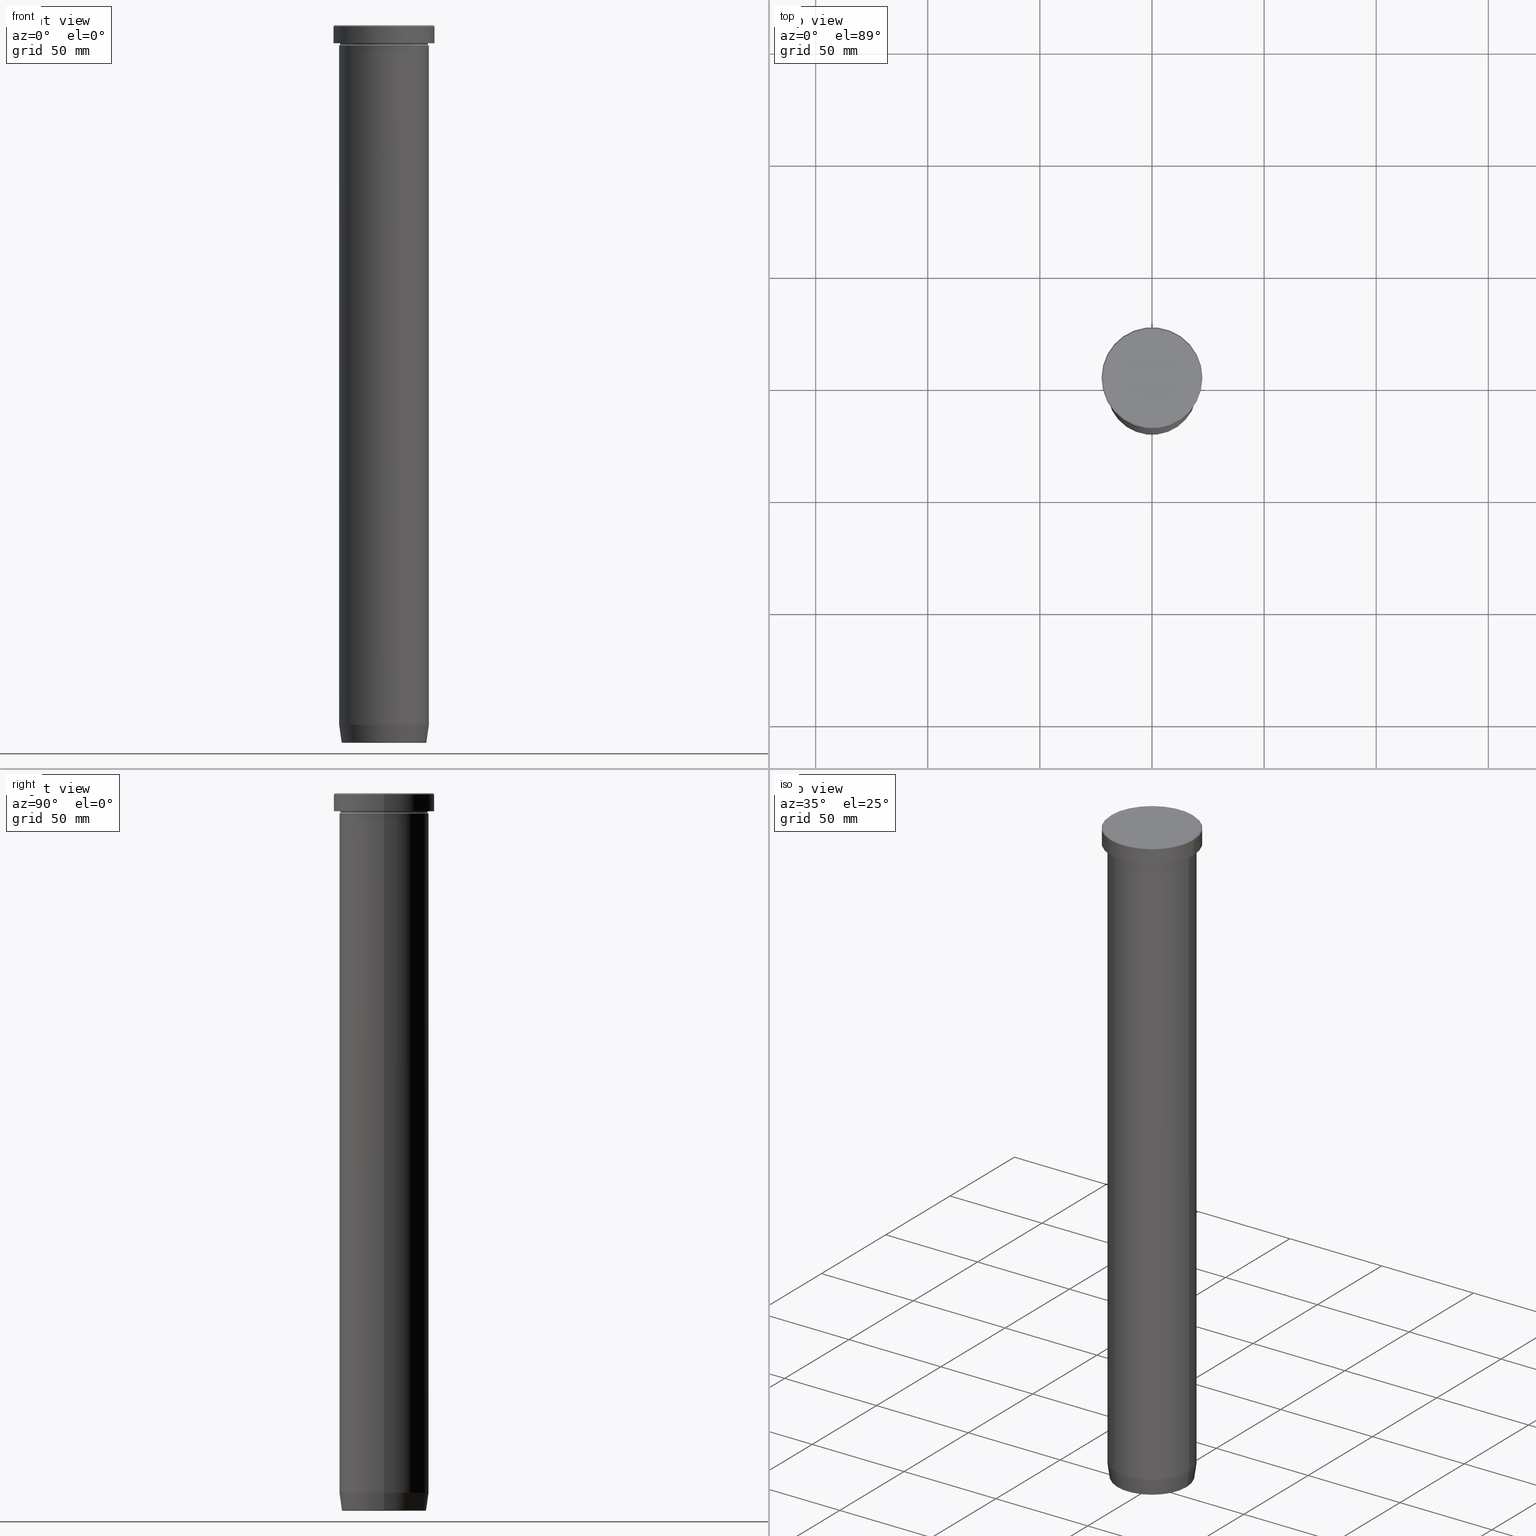
[diagram: canonical four-view strip — front | top / right | iso, engineering-drawing reading convention]
A machine part, canonical four-view strip (front | top / right | iso — engineering-drawing reading convention). The complete STEP part file that produces these views, byte-faithful:
ISO-10303-21;
HEADER;
FILE_DESCRIPTION (( 'STEP AP203' ),
    '1' );
FILE_NAME ('9554.STEP',
    '2024-01-02T17:47:36',
    ( '' ),
    ( '' ),
    'SwSTEP 2.0',
    'SolidWorks 2019',
    '' );
FILE_SCHEMA (( 'CONFIG_CONTROL_DESIGN' ));
ENDSEC;

DATA;
#1 = CARTESIAN_POINT ( 'NONE',  ( 0.000000000000000000, 0.000000000000000000, 0.000000000000000000 ) ) ;
#2 = ADVANCED_FACE ( 'NONE', ( #270 ), #80, .F. ) ;
#3 = AXIS2_PLACEMENT_3D ( 'NONE', #422, #389, #468 ) ;
#4 = ADVANCED_FACE ( 'NONE', ( #85 ), #300, .T. ) ;
#5 = DIRECTION ( 'NONE',  ( 1.000000000000000000, 0.000000000000000000, 0.000000000000000000 ) ) ;
#6 = CC_DESIGN_APPROVAL ( #25, ( #485 ) ) ;
#7 = DIRECTION ( 'NONE',  ( -0.000000000000000000, -0.000000000000000000, 1.000000000000000000 ) ) ;
#8 = EDGE_LOOP ( 'NONE', ( #364, #197, #355, #37 ) ) ;
#9 = VERTEX_POINT ( 'NONE', #318 ) ;
#10 = DIRECTION ( 'NONE',  ( -0.000000000000000000, -0.000000000000000000, 1.000000000000000000 ) ) ;
#11 = ORIENTED_EDGE ( 'NONE', *, *, #146, .F. ) ;
#12 = DATE_AND_TIME ( #472, #213 ) ;
#13 = DIRECTION ( 'NONE',  ( 0.000000000000000000, 0.000000000000000000, -1.000000000000000000 ) ) ;
#14 = ORIENTED_EDGE ( 'NONE', *, *, #452, .T. ) ;
#15 = ORIENTED_EDGE ( 'NONE', *, *, #385, .F. ) ;
#16 = EDGE_CURVE ( 'NONE', #121, #127, #240, .T. ) ;
#17 = VERTEX_POINT ( 'NONE', #399 ) ;
#18 = AXIS2_PLACEMENT_3D ( 'NONE', #378, #198, #566 ) ;
#19 = VERTEX_POINT ( 'NONE', #491 ) ;
#20 = AXIS2_PLACEMENT_3D ( 'NONE', #185, #586, #324 ) ;
#21 = PERSON_AND_ORGANIZATION_ROLE ( 'design_owner' ) ;
#22 = EDGE_CURVE ( 'NONE', #358, #263, #51, .T. ) ;
#23 = DIRECTION ( 'NONE',  ( 1.000000000000000000, 0.000000000000000000, 0.000000000000000000 ) ) ;
#24 = FACE_OUTER_BOUND ( 'NONE', #57, .T. ) ;
#25 = APPROVAL ( #544, 'NEUR�EN�' ) ;
#26 = UNCERTAINTY_MEASURE_WITH_UNIT (LENGTH_MEASURE( 1.000000000000000082E-05 ), #441, 'distance_accuracy_value', 'NONE');
#27 = EDGE_CURVE ( 'NONE', #467, #423, #350, .T. ) ;
#28 = DIRECTION ( 'NONE',  ( 1.000000000000000000, 0.000000000000000000, 0.000000000000000000 ) ) ;
#29 = ADVANCED_FACE ( 'NONE', ( #541, #24 ), #314, .T. ) ;
#30 = CARTESIAN_POINT ( 'NONE',  ( -20.00000000000000000, 2.449293598294706513E-15, -8.499999999999996447 ) ) ;
#31 = AXIS2_PLACEMENT_3D ( 'NONE', #444, #69, #595 ) ;
#32 = CARTESIAN_POINT ( 'NONE',  ( 19.50000000000000000, 0.000000000000000000, -8.499999999999996447 ) ) ;
#33 = TOROIDAL_SURFACE ( 'NONE', #247, 20.00000000000000000, 0.5000000000000000000 ) ;
#34 = ORIENTED_EDGE ( 'NONE', *, *, #308, .F. ) ;
#35 = CARTESIAN_POINT ( 'NONE',  ( 0.000000000000000000, 0.000000000000000000, -40.00000000000000000 ) ) ;
#36 = DATE_TIME_ROLE ( 'creation_date' ) ;
#37 = ORIENTED_EDGE ( 'NONE', *, *, #181, .F. ) ;
#38 = EDGE_CURVE ( 'NONE', #428, #19, #469, .T. ) ;
#39 = DIRECTION ( 'NONE',  ( -0.000000000000000000, -0.000000000000000000, 1.000000000000000000 ) ) ;
#40 = DIRECTION ( 'NONE',  ( 1.224646799147353207E-16, 1.000000000000000000, 0.000000000000000000 ) ) ;
#41 = TOROIDAL_SURFACE ( 'NONE', #52, 18.44102995347274287, 0.5000000000000000000 ) ;
#42 = DIRECTION ( 'NONE',  ( -1.000000000000000000, 1.224646799147349509E-16, 0.000000000000000000 ) ) ;
#43 = ADVANCED_FACE ( 'NONE', ( #484 ), #374, .T. ) ;
#44 = FACE_OUTER_BOUND ( 'NONE', #64, .T. ) ;
#45 = CYLINDRICAL_SURFACE ( 'NONE', #456, 22.50000000000000000 ) ;
#46 = AXIS2_PLACEMENT_3D ( 'NONE', #73, #131, #438 ) ;
#47 = AXIS2_PLACEMENT_3D ( 'NONE', #504, #558, #88 ) ;
#48 = SECURITY_CLASSIFICATION ( '', '', #345 ) ;
#49 = CARTESIAN_POINT ( 'NONE',  ( 22.50000000000000000, 0.000000000000000000, -0.4999999999999935052 ) ) ;
#50 = EDGE_LOOP ( 'NONE', ( #529, #400, #200, #249 ) ) ;
#51 = CIRCLE ( 'NONE', #341, 20.00000000000000000 ) ;
#52 = AXIS2_PLACEMENT_3D ( 'NONE', #67, #535, #437 ) ;
#53 = CARTESIAN_POINT ( 'NONE',  ( -20.00000000000000000, 0.000000000000000000, -8.499999999999998224 ) ) ;
#54 = ORIENTED_EDGE ( 'NONE', *, *, #199, .T. ) ;
#55 = COORDINATED_UNIVERSAL_TIME_OFFSET ( 1, 0, .AHEAD. ) ;
#56 = DIRECTION ( 'NONE',  ( 0.000000000000000000, 0.000000000000000000, -1.000000000000000000 ) ) ;
#57 = EDGE_LOOP ( 'NONE', ( #251, #298 ) ) ;
#58 = EDGE_CURVE ( 'NONE', #9, #428, #585, .T. ) ;
#59 = ORIENTED_EDGE ( 'NONE', *, *, #288, .F. ) ;
#60 = MANIFOLD_SOLID_BREP ( 'Zkosen�1', #105 ) ;
#61 = CARTESIAN_POINT ( 'NONE',  ( -18.87567332238086237, 2.311603291600480972E-15, -320.0000000000000000 ) ) ;
#62 = ORIENTED_EDGE ( 'NONE', *, *, #236, .T. ) ;
#63 = CARTESIAN_POINT ( 'NONE',  ( 22.00000000000000000, 2.724839128102860991E-15, 0.000000000000000000 ) ) ;
#64 = EDGE_LOOP ( 'NONE', ( #113, #116, #109, #11 ) ) ;
#65 = DIRECTION ( 'NONE',  ( -0.000000000000000000, -0.000000000000000000, 1.000000000000000000 ) ) ;
#66 = CIRCLE ( 'NONE', #278, 20.00000000000000000 ) ;
#67 = CARTESIAN_POINT ( 'NONE',  ( 0.000000000000000000, 0.000000000000000000, -319.5000000000000000 ) ) ;
#68 = CIRCLE ( 'NONE', #187, 20.00000000000000000 ) ;
#69 = DIRECTION ( 'NONE',  ( 0.000000000000000000, 0.000000000000000000, -1.000000000000000000 ) ) ;
#70 = FACE_OUTER_BOUND ( 'NONE', #436, .T. ) ;
#71 = VERTEX_POINT ( 'NONE', #171 ) ;
#72 = DIRECTION ( 'NONE',  ( 0.1391731009600663260, 0.000000000000000000, 0.9902680687415701399 ) ) ;
#73 = CARTESIAN_POINT ( 'NONE',  ( 0.000000000000000000, 0.000000000000000000, 0.000000000000000000 ) ) ;
#74 = MECHANICAL_CONTEXT ( 'NONE', #567, 'mechanical' ) ;
#75 = DIRECTION ( 'NONE',  ( 1.000000000000000000, 0.000000000000000000, 0.000000000000000000 ) ) ;
#76 =( NAMED_UNIT ( * ) PLANE_ANGLE_UNIT ( ) SI_UNIT ( $, .RADIAN. ) );
#77 = ORIENTED_EDGE ( 'NONE', *, *, #413, .T. ) ;
#78 = DIRECTION ( 'NONE',  ( 1.000000000000000000, 0.000000000000000000, 0.000000000000000000 ) ) ;
#79 = VECTOR ( 'NONE', #129, 1000.000000000000000 ) ;
#80 = PLANE ( 'NONE',  #134 ) ;
#81 = AXIS2_PLACEMENT_3D ( 'NONE', #190, #188, #189 ) ;
#82 = DIRECTION ( 'NONE',  ( 1.000000000000000000, 0.000000000000000000, 0.000000000000000000 ) ) ;
#83 = CALENDAR_DATE ( 2024, 2, 1 ) ;
#84 = CC_DESIGN_DATE_AND_TIME_ASSIGNMENT ( #283, #36, ( #485 ) ) ;
#85 = FACE_OUTER_BOUND ( 'NONE', #575, .T. ) ;
#86 = DIRECTION ( 'NONE',  ( -0.000000000000000000, -0.000000000000000000, 1.000000000000000000 ) ) ;
#87 = EDGE_CURVE ( 'NONE', #173, #423, #434, .T. ) ;
#88 = DIRECTION ( 'NONE',  ( 1.000000000000000000, 0.000000000000000000, 0.000000000000000000 ) ) ;
#89 = DIRECTION ( 'NONE',  ( 0.000000000000000000, -0.000000000000000000, 1.000000000000000000 ) ) ;
#90 = CIRCLE ( 'NONE', #376, 20.00000000000000000 ) ;
#91 = CC_DESIGN_PERSON_AND_ORGANIZATION_ASSIGNMENT ( #201, #100, ( #227 ) ) ;
#92 = FACE_OUTER_BOUND ( 'NONE', #158, .T. ) ;
#93 = CARTESIAN_POINT ( 'NONE',  ( -20.00000000000000000, 2.449293598294706513E-15, -8.999999999999998224 ) ) ;
#94 = VECTOR ( 'NONE', #464, 1000.000000000000000 ) ;
#95 = CIRCLE ( 'NONE', #435, 0.5000000000000004441 ) ;
#96 = ADVANCED_FACE ( 'NONE', ( #123 ), #554, .T. ) ;
#97 = CARTESIAN_POINT ( 'NONE',  ( -18.44102995347274287, 2.288693046067140627E-15, -320.0000000000000000 ) ) ;
#98 = CARTESIAN_POINT ( 'NONE',  ( 20.00000000000000000, 0.000000000000000000, -8.499999999999996447 ) ) ;
#99 = ORIENTED_EDGE ( 'NONE', *, *, #27, .F. ) ;
#100 = PERSON_AND_ORGANIZATION_ROLE ( 'creator' ) ;
#101 = ORIENTED_EDGE ( 'NONE', *, *, #323, .F. ) ;
#102 = CARTESIAN_POINT ( 'NONE',  ( 18.44102995347274287, 0.000000000000000000, -320.0000000000000000 ) ) ;
#103 = VERTEX_POINT ( 'NONE', #32 ) ;
#104 = EDGE_CURVE ( 'NONE', #277, #121, #592, .T. ) ;
#105 = CLOSED_SHELL ( 'NONE', ( #333, #562, #245, #118, #398, #598, #534, #548, #29, #500, #427, #353, #4 ) ) ;
#106 = ORIENTED_EDGE ( 'NONE', *, *, #323, .T. ) ;
#107 = CIRCLE ( 'NONE', #591, 20.00000000000000000 ) ;
#108 = DIRECTION ( 'NONE',  ( -0.000000000000000000, -1.000000000000000000, -0.000000000000000000 ) ) ;
#109 = ORIENTED_EDGE ( 'NONE', *, *, #239, .T. ) ;
#110 = PRODUCT_DEFINITION_SHAPE ( 'NONE', 'NONE',  #485 ) ;
#111 = DIRECTION ( 'NONE',  ( -0.000000000000000000, -0.000000000000000000, 1.000000000000000000 ) ) ;
#112 = EDGE_CURVE ( 'NONE', #409, #9, #391, .T. ) ;
#113 = ORIENTED_EDGE ( 'NONE', *, *, #515, .T. ) ;
#114 = PERSON_AND_ORGANIZATION ( #377, #241 ) ;
#115 = DIRECTION ( 'NONE',  ( 0.000000000000000000, 0.000000000000000000, -1.000000000000000000 ) ) ;
#116 = ORIENTED_EDGE ( 'NONE', *, *, #513, .T. ) ;
#117 = ORIENTED_EDGE ( 'NONE', *, *, #269, .F. ) ;
#118 = ADVANCED_FACE ( 'NONE', ( #207 ), #339, .T. ) ;
#119 = PLANE ( 'NONE',  #20 ) ;
#120 = DIRECTION ( 'NONE',  ( -1.000000000000000000, 0.000000000000000000, 0.000000000000000000 ) ) ;
#121 = VERTEX_POINT ( 'NONE', #49 ) ;
#122 = CARTESIAN_POINT ( 'NONE',  ( 0.000000000000000000, 0.000000000000000000, -0.4999999999999935052 ) ) ;
#123 = FACE_OUTER_BOUND ( 'NONE', #348, .T. ) ;
#124 = APPROVAL_PERSON_ORGANIZATION ( #297, #449, #466 ) ;
#125 = CARTESIAN_POINT ( 'NONE',  ( 0.000000000000000000, 0.000000000000000000, 0.000000000000000000 ) ) ;
#126 = CARTESIAN_POINT ( 'NONE',  ( 0.000000000000000000, 0.000000000000000000, -8.499999999999996447 ) ) ;
#127 = VERTEX_POINT ( 'NONE', #347 ) ;
#128 = DIRECTION ( 'NONE',  ( 1.000000000000000000, 0.000000000000000000, 0.000000000000000000 ) ) ;
#129 = DIRECTION ( 'NONE',  ( -0.000000000000000000, -0.000000000000000000, 1.000000000000000000 ) ) ;
#130 = DIRECTION ( 'NONE',  ( 0.000000000000000000, 0.000000000000000000, 1.000000000000000000 ) ) ;
#131 = DIRECTION ( 'NONE',  ( 0.000000000000000000, 0.000000000000000000, -1.000000000000000000 ) ) ;
#132 = ORIENTED_EDGE ( 'NONE', *, *, #156, .T. ) ;
#133 = ADVANCED_FACE ( 'NONE', ( #163 ), #150, .T. ) ;
#134 = AXIS2_PLACEMENT_3D ( 'NONE', #367, #547, #231 ) ;
#135 = CARTESIAN_POINT ( 'NONE',  ( 0.000000000000000000, 0.000000000000000000, -0.4999999999999935052 ) ) ;
#136 = DIRECTION ( 'NONE',  ( -0.000000000000000000, -0.000000000000000000, 1.000000000000000000 ) ) ;
#137 = ADVANCED_BREP_SHAPE_REPRESENTATION ( '9554', ( #60, #475, #543 ), #487 ) ;
#138 = DIRECTION ( 'NONE',  ( -1.000000000000000000, 0.000000000000000000, 0.000000000000000000 ) ) ;
#139 = EDGE_CURVE ( 'NONE', #19, #428, #66, .T. ) ;
#140 = FACE_OUTER_BOUND ( 'NONE', #303, .T. ) ;
#141 = TOROIDAL_SURFACE ( 'NONE', #516, 20.00000000000000000, 0.5000000000000000000 ) ;
#142 = AXIS2_PLACEMENT_3D ( 'NONE', #122, #489, #483 ) ;
#143 = CARTESIAN_POINT ( 'NONE',  ( 20.00000000000000000, 2.449293598294706513E-15, -8.499999999999998224 ) ) ;
#144 = CIRCLE ( 'NONE', #195, 0.5000000000000004441 ) ;
#145 = EDGE_CURVE ( 'NONE', #103, #71, #415, .T. ) ;
#146 = EDGE_CURVE ( 'NONE', #161, #121, #343, .T. ) ;
#147 = EDGE_CURVE ( 'NONE', #358, #388, #518, .T. ) ;
#148 = VECTOR ( 'NONE', #307, 1000.000000000000000 ) ;
#149 = AXIS2_PLACEMENT_3D ( 'NONE', #126, #305, #316 ) ;
#150 = CYLINDRICAL_SURFACE ( 'NONE', #3, 20.00000000000000000 ) ;
#151 = VERTEX_POINT ( 'NONE', #97 ) ;
#152 = CALENDAR_DATE ( 2024, 2, 1 ) ;
#153 = ORIENTED_EDGE ( 'NONE', *, *, #147, .F. ) ;
#154 = DIRECTION ( 'NONE',  ( 0.000000000000000000, 0.000000000000000000, -1.000000000000000000 ) ) ;
#155 = ORIENTED_EDGE ( 'NONE', *, *, #27, .T. ) ;
#156 = EDGE_CURVE ( 'NONE', #301, #488, #160, .T. ) ;
#157 = DATE_AND_TIME ( #386, #457 ) ;
#158 = EDGE_LOOP ( 'NONE', ( #208, #296, #577, #584 ) ) ;
#159 = ORIENTED_EDGE ( 'NONE', *, *, #181, .T. ) ;
#160 = CIRCLE ( 'NONE', #18, 20.00000000000000000 ) ;
#161 = VERTEX_POINT ( 'NONE', #523 ) ;
#162 = AXIS2_PLACEMENT_3D ( 'NONE', #334, #39, #238 ) ;
#163 = FACE_OUTER_BOUND ( 'NONE', #433, .T. ) ;
#164 = ORIENTED_EDGE ( 'NONE', *, *, #236, .F. ) ;
#165 = DIRECTION ( 'NONE',  ( -0.000000000000000000, -0.000000000000000000, 1.000000000000000000 ) ) ;
#166 = FACE_OUTER_BOUND ( 'NONE', #284, .T. ) ;
#167 = ORIENTED_EDGE ( 'NONE', *, *, #338, .F. ) ;
#168 = DATE_AND_TIME ( #152, #253 ) ;
#169 = CARTESIAN_POINT ( 'NONE',  ( 0.000000000000000000, 0.000000000000000000, 0.000000000000000000 ) ) ;
#170 = CARTESIAN_POINT ( 'NONE',  ( 0.000000000000000000, 0.000000000000000000, 0.000000000000000000 ) ) ;
#171 = CARTESIAN_POINT ( 'NONE',  ( 20.00000000000000000, 0.000000000000000000, -8.999999999999998224 ) ) ;
#172 = PERSON_AND_ORGANIZATION ( #377, #241 ) ;
#173 = VERTEX_POINT ( 'NONE', #102 ) ;
#174 = AXIS2_PLACEMENT_3D ( 'NONE', #179, #432, #365 ) ;
#175 = CIRCLE ( 'NONE', #162, 20.00000000000000000 ) ;
#176 = DIRECTION ( 'NONE',  ( 0.000000000000000000, 0.000000000000000000, -1.000000000000000000 ) ) ;
#177 = CC_DESIGN_APPROVAL ( #462, ( #227 ) ) ;
#178 = DIRECTION ( 'NONE',  ( 0.000000000000000000, 0.000000000000000000, -1.000000000000000000 ) ) ;
#179 = CARTESIAN_POINT ( 'NONE',  ( 0.000000000000000000, 0.000000000000000000, -8.999999999999998224 ) ) ;
#180 = DIRECTION ( 'NONE',  ( -0.000000000000000000, -0.000000000000000000, 1.000000000000000000 ) ) ;
#181 = EDGE_CURVE ( 'NONE', #536, #301, #486, .T. ) ;
#182 = CALENDAR_DATE ( 2024, 2, 1 ) ;
#183 = ORIENTED_EDGE ( 'NONE', *, *, #16, .F. ) ;
#184 = DIRECTION ( 'NONE',  ( -0.000000000000000000, -0.000000000000000000, 1.000000000000000000 ) ) ;
#185 = CARTESIAN_POINT ( 'NONE',  ( 0.000000000000000000, 20.00000000000000000, -40.00000000000000000 ) ) ;
#186 = AXIS2_PLACEMENT_3D ( 'NONE', #309, #221, #546 ) ;
#187 = AXIS2_PLACEMENT_3D ( 'NONE', #540, #275, #23 ) ;
#188 = DIRECTION ( 'NONE',  ( -0.000000000000000000, -0.000000000000000000, 1.000000000000000000 ) ) ;
#189 = DIRECTION ( 'NONE',  ( 1.000000000000000000, 0.000000000000000000, 0.000000000000000000 ) ) ;
#190 = CARTESIAN_POINT ( 'NONE',  ( 0.000000000000000000, 0.000000000000000000, -7.999999999999998224 ) ) ;
#191 = TOROIDAL_SURFACE ( 'NONE', #47, 20.00000000000000000, 0.5000000000000000000 ) ;
#192 = CC_DESIGN_PERSON_AND_ORGANIZATION_ASSIGNMENT ( #172, #21, ( #514 ) ) ;
#193 = CARTESIAN_POINT ( 'NONE',  ( -20.00000000000000000, 2.449293598294706513E-15, 0.000000000000000000 ) ) ;
#194 = AXIS2_PLACEMENT_3D ( 'NONE', #135, #176, #281 ) ;
#195 = AXIS2_PLACEMENT_3D ( 'NONE', #143, #337, #511 ) ;
#196 = DATE_TIME_ROLE ( 'classification_date' ) ;
#197 = ORIENTED_EDGE ( 'NONE', *, *, #539, .T. ) ;
#198 = DIRECTION ( 'NONE',  ( -0.000000000000000000, -0.000000000000000000, 1.000000000000000000 ) ) ;
#199 = EDGE_CURVE ( 'NONE', #532, #127, #531, .T. ) ;
#200 = ORIENTED_EDGE ( 'NONE', *, *, #411, .T. ) ;
#201 = PERSON_AND_ORGANIZATION ( #377, #241 ) ;
#202 = ORIENTED_EDGE ( 'NONE', *, *, #411, .F. ) ;
#203 = EDGE_CURVE ( 'NONE', #17, #161, #542, .T. ) ;
#204 = ORIENTED_EDGE ( 'NONE', *, *, #452, .F. ) ;
#205 = DIRECTION ( 'NONE',  ( -1.000000000000000000, 0.000000000000000000, 0.000000000000000000 ) ) ;
#206 = EDGE_LOOP ( 'NONE', ( #573, #465, #164, #582 ) ) ;
#207 = FACE_OUTER_BOUND ( 'NONE', #206, .T. ) ;
#208 = ORIENTED_EDGE ( 'NONE', *, *, #513, .F. ) ;
#209 = COORDINATED_UNIVERSAL_TIME_OFFSET ( 1, 0, .AHEAD. ) ;
#210 = CLOSED_SHELL ( 'NONE', ( #299, #43, #319, #2, #133, #96, #563, #579 ) ) ;
#211 = ORIENTED_EDGE ( 'NONE', *, *, #112, .T. ) ;
#212 = AXIS2_PLACEMENT_3D ( 'NONE', #537, #271, #499 ) ;
#213 = LOCAL_TIME ( 18, 47, 36.00000000000000000, #209 ) ;
#214 = LINE ( 'NONE', #268, #287 ) ;
#215 = ORIENTED_EDGE ( 'NONE', *, *, #87, .F. ) ;
#216 = APPROVAL_STATUS ( 'not_yet_approved' ) ;
#217 = CARTESIAN_POINT ( 'NONE',  ( 0.000000000000000000, 0.000000000000000000, 0.000000000000000000 ) ) ;
#218 = CYLINDRICAL_SURFACE ( 'NONE', #560, 20.00000000000000000 ) ;
#219 = DIRECTION ( 'NONE',  ( -0.000000000000000000, -0.000000000000000000, 1.000000000000000000 ) ) ;
#220 = ORIENTED_EDGE ( 'NONE', *, *, #58, .T. ) ;
#221 = DIRECTION ( 'NONE',  ( -0.000000000000000000, -0.000000000000000000, 1.000000000000000000 ) ) ;
#222 = DIRECTION ( 'NONE',  ( 1.000000000000000000, 0.000000000000000000, 0.000000000000000000 ) ) ;
#223 = DIRECTION ( 'NONE',  ( -1.000000000000000000, 0.000000000000000000, 0.000000000000000000 ) ) ;
#224 = ORIENTED_EDGE ( 'NONE', *, *, #490, .T. ) ;
#225 = AXIS2_PLACEMENT_3D ( 'NONE', #410, #184, #28 ) ;
#226 = DESIGN_CONTEXT ( 'detailed design', #439, 'design' ) ;
#227 = PRODUCT_DEFINITION_FORMATION_WITH_SPECIFIED_SOURCE ( 'LIBOVOLN�', '', #514, .NOT_KNOWN. ) ;
#228 = CARTESIAN_POINT ( 'NONE',  ( -20.00000000000000000, 0.000000000000000000, -7.999999999999998224 ) ) ;
#229 = AXIS2_PLACEMENT_3D ( 'NONE', #125, #583, #320 ) ;
#230 = EDGE_CURVE ( 'NONE', #532, #277, #576, .T. ) ;
#231 = DIRECTION ( 'NONE',  ( -1.000000000000000000, 0.000000000000000000, -0.000000000000000000 ) ) ;
#232 =( NAMED_UNIT ( * ) SI_UNIT ( $, .STERADIAN. ) SOLID_ANGLE_UNIT ( ) );
#233 = ORIENTED_EDGE ( 'NONE', *, *, #340, .F. ) ;
#234 = CARTESIAN_POINT ( 'NONE',  ( 0.000000000000000000, 0.000000000000000000, -319.5695865504800395 ) ) ;
#235 = CARTESIAN_POINT ( 'NONE',  ( 0.000000000000000000, 0.000000000000000000, -8.999999999999998224 ) ) ;
#236 = EDGE_CURVE ( 'NONE', #71, #388, #330, .T. ) ;
#237 = PERSON_AND_ORGANIZATION ( #377, #241 ) ;
#238 = DIRECTION ( 'NONE',  ( 1.000000000000000000, 0.000000000000000000, 0.000000000000000000 ) ) ;
#239 = EDGE_CURVE ( 'NONE', #127, #121, #460, .T. ) ;
#240 = CIRCLE ( 'NONE', #194, 22.50000000000000000 ) ;
#241 = ORGANIZATION ( 'NEUR�EN�', 'NEUR�EN�', '' ) ;
#242 = LINE ( 'NONE', #559, #279 ) ;
#243 = FACE_OUTER_BOUND ( 'NONE', #430, .T. ) ;
#244 = CARTESIAN_POINT ( 'NONE',  ( -20.00000000000000000, 2.449293598294706513E-15, -40.00000000000000000 ) ) ;
#245 = ADVANCED_FACE ( 'NONE', ( #443 ), #141, .F. ) ;
#246 = AXIS2_PLACEMENT_3D ( 'NONE', #503, #219, #222 ) ;
#247 = AXIS2_PLACEMENT_3D ( 'NONE', #473, #56, #205 ) ;
#248 = CARTESIAN_POINT ( 'NONE',  ( 0.000000000000000000, 0.000000000000000000, -7.999999999999998224 ) ) ;
#249 = ORIENTED_EDGE ( 'NONE', *, *, #145, .F. ) ;
#250 = DIRECTION ( 'NONE',  ( 1.000000000000000000, 0.000000000000000000, 0.000000000000000000 ) ) ;
#251 = ORIENTED_EDGE ( 'NONE', *, *, #515, .F. ) ;
#252 = CIRCLE ( 'NONE', #590, 18.93616398784353194 ) ;
#253 = LOCAL_TIME ( 18, 47, 36.00000000000000000, #55 ) ;
#254 = ORIENTED_EDGE ( 'NONE', *, *, #230, .F. ) ;
#255 = DIRECTION ( 'NONE',  ( 0.000000000000000000, 0.000000000000000000, -1.000000000000000000 ) ) ;
#256 = APPROVAL_ROLE ( '' ) ;
#257 = LINE ( 'NONE', #61, #561 ) ;
#258 = ORIENTED_EDGE ( 'NONE', *, *, #145, .T. ) ;
#259 = ORIENTED_EDGE ( 'NONE', *, *, #87, .T. ) ;
#260 = ORIENTED_EDGE ( 'NONE', *, *, #338, .T. ) ;
#261 = EDGE_CURVE ( 'NONE', #423, #409, #214, .T. ) ;
#262 = CARTESIAN_POINT ( 'NONE',  ( 0.000000000000000000, 0.000000000000000000, -8.499999999999996447 ) ) ;
#263 = VERTEX_POINT ( 'NONE', #478 ) ;
#264 = EDGE_CURVE ( 'NONE', #536, #103, #266, .T. ) ;
#265 = COORDINATED_UNIVERSAL_TIME_OFFSET ( 1, 0, .AHEAD. ) ;
#266 = CIRCLE ( 'NONE', #508, 19.50000000000000000 ) ;
#267 = ORIENTED_EDGE ( 'NONE', *, *, #58, .F. ) ;
#268 = CARTESIAN_POINT ( 'NONE',  ( 18.87567332238086237, 0.000000000000000000, -320.0000000000000000 ) ) ;
#269 = EDGE_CURVE ( 'NONE', #423, #467, #252, .T. ) ;
#270 = FACE_OUTER_BOUND ( 'NONE', #568, .T. ) ;
#271 = DIRECTION ( 'NONE',  ( 0.000000000000000000, -0.000000000000000000, 1.000000000000000000 ) ) ;
#272 = DIRECTION ( 'NONE',  ( -1.000000000000000000, 0.000000000000000000, 0.000000000000000000 ) ) ;
#273 = PLANE ( 'NONE',  #212 ) ;
#274 = CC_DESIGN_PERSON_AND_ORGANIZATION_ASSIGNMENT ( #393, #571, ( #48 ) ) ;
#275 = DIRECTION ( 'NONE',  ( -0.000000000000000000, -0.000000000000000000, 1.000000000000000000 ) ) ;
#276 = DIRECTION ( 'NONE',  ( -1.000000000000000000, 0.000000000000000000, 0.000000000000000000 ) ) ;
#277 = VERTEX_POINT ( 'NONE', #63 ) ;
#278 = AXIS2_PLACEMENT_3D ( 'NONE', #527, #7, #569 ) ;
#279 = VECTOR ( 'NONE', #453, 1000.000000000000000 ) ;
#280 = DIRECTION ( 'NONE',  ( -0.000000000000000000, -0.000000000000000000, 1.000000000000000000 ) ) ;
#281 = DIRECTION ( 'NONE',  ( 1.000000000000000000, 0.000000000000000000, 0.000000000000000000 ) ) ;
#282 = CARTESIAN_POINT ( 'NONE',  ( 20.00000000000000000, 0.000000000000000000, -312.0000000000000000 ) ) ;
#283 = DATE_AND_TIME ( #83, #363 ) ;
#284 = EDGE_LOOP ( 'NONE', ( #15, #77, #117, #215 ) ) ;
#285 = CARTESIAN_POINT ( 'NONE',  ( -18.44102995347274287, 2.258374830550085697E-15, -319.5000000000000000 ) ) ;
#286 = CARTESIAN_POINT ( 'NONE',  ( 0.000000000000000000, 0.000000000000000000, 0.000000000000000000 ) ) ;
#287 = VECTOR ( 'NONE', #72, 1000.000000000000227 ) ;
#288 = EDGE_CURVE ( 'NONE', #536, #388, #336, .T. ) ;
#289 = TOROIDAL_SURFACE ( 'NONE', #461, 20.00000000000000000, 0.5000000000000000000 ) ;
#290 = CARTESIAN_POINT ( 'NONE',  ( 0.000000000000000000, 0.000000000000000000, 0.000000000000000000 ) ) ;
#291 = CYLINDRICAL_SURFACE ( 'NONE', #229, 22.50000000000000000 ) ;
#292 = CC_DESIGN_PERSON_AND_ORGANIZATION_ASSIGNMENT ( #114, #451, ( #485 ) ) ;
#293 = VECTOR ( 'NONE', #302, 1000.000000000000000 ) ;
#294 = AXIS2_PLACEMENT_3D ( 'NONE', #549, #65, #315 ) ;
#295 = CARTESIAN_POINT ( 'NONE',  ( 22.50000000000000000, 0.000000000000000000, 0.000000000000000000 ) ) ;
#296 = ORIENTED_EDGE ( 'NONE', *, *, #203, .T. ) ;
#297 = PERSON_AND_ORGANIZATION ( #377, #241 ) ;
#298 = ORIENTED_EDGE ( 'NONE', *, *, #203, .F. ) ;
#299 = ADVANCED_FACE ( 'NONE', ( #166 ), #41, .T. ) ;
#300 = CONICAL_SURFACE ( 'NONE', #46, 22.00000000000000000, 0.7853981633974552734 ) ;
#301 = VERTEX_POINT ( 'NONE', #228 ) ;
#302 = DIRECTION ( 'NONE',  ( -0.000000000000000000, -0.000000000000000000, 1.000000000000000000 ) ) ;
#303 = EDGE_LOOP ( 'NONE', ( #496, #14 ) ) ;
#304 = PERSON_AND_ORGANIZATION ( #377, #241 ) ;
#305 = DIRECTION ( 'NONE',  ( -0.000000000000000000, -0.000000000000000000, 1.000000000000000000 ) ) ;
#306 = ORIENTED_EDGE ( 'NONE', *, *, #340, .T. ) ;
#307 = DIRECTION ( 'NONE',  ( -0.000000000000000000, -0.000000000000000000, 1.000000000000000000 ) ) ;
#308 = EDGE_CURVE ( 'NONE', #9, #409, #68, .T. ) ;
#309 = CARTESIAN_POINT ( 'NONE',  ( 0.000000000000000000, 0.000000000000000000, 0.000000000000000000 ) ) ;
#310 = ORIENTED_EDGE ( 'NONE', *, *, #385, .T. ) ;
#311 = COORDINATED_UNIVERSAL_TIME_OFFSET ( 1, 0, .AHEAD. ) ;
#312 = DIRECTION ( 'NONE',  ( 1.000000000000000000, 0.000000000000000000, 0.000000000000000000 ) ) ;
#313 = ORIENTED_EDGE ( 'NONE', *, *, #239, .F. ) ;
#314 = PLANE ( 'NONE',  #31 ) ;
#315 = DIRECTION ( 'NONE',  ( 1.000000000000000000, 0.000000000000000000, 0.000000000000000000 ) ) ;
#316 = DIRECTION ( 'NONE',  ( 1.000000000000000000, 0.000000000000000000, 0.000000000000000000 ) ) ;
#317 = LOCAL_TIME ( 18, 47, 36.00000000000000000, #402 ) ;
#318 = CARTESIAN_POINT ( 'NONE',  ( -20.00000000000000000, 2.449293598294706513E-15, -312.0000000000000000 ) ) ;
#319 = ADVANCED_FACE ( 'NONE', ( #405 ), #218, .T. ) ;
#320 = DIRECTION ( 'NONE',  ( 1.000000000000000000, 0.000000000000000000, 0.000000000000000000 ) ) ;
#321 = DIRECTION ( 'NONE',  ( -1.000000000000000000, 1.224646799147349509E-16, 0.000000000000000000 ) ) ;
#322 = DIRECTION ( 'NONE',  ( 0.000000000000000000, -1.000000000000000000, 0.000000000000000000 ) ) ;
#323 = EDGE_CURVE ( 'NONE', #467, #9, #257, .T. ) ;
#324 = DIRECTION ( 'NONE',  ( -1.000000000000000000, 0.000000000000000000, -0.000000000000000000 ) ) ;
#325 = ORIENTED_EDGE ( 'NONE', *, *, #418, .T. ) ;
#326 = CARTESIAN_POINT ( 'NONE',  ( 0.000000000000000000, 0.000000000000000000, -312.0000000000000000 ) ) ;
#327 = CARTESIAN_POINT ( 'NONE',  ( 0.000000000000000000, 0.000000000000000000, 0.000000000000000000 ) ) ;
#328 = APPROVAL_DATE_TIME ( #396, #25 ) ;
#329 = ORIENTED_EDGE ( 'NONE', *, *, #261, .F. ) ;
#330 = CIRCLE ( 'NONE', #174, 20.00000000000000000 ) ;
#331 = CONICAL_SURFACE ( 'NONE', #447, 22.00000000000000000, 0.7853981633974552734 ) ;
#332 = DIRECTION ( 'NONE',  ( 1.000000000000000000, 0.000000000000000000, 0.000000000000000000 ) ) ;
#333 = ADVANCED_FACE ( 'NONE', ( #354 ), #331, .T. ) ;
#334 = CARTESIAN_POINT ( 'NONE',  ( 0.000000000000000000, 0.000000000000000000, -40.00000000000000000 ) ) ;
#335 = CARTESIAN_POINT ( 'NONE',  ( 18.93616398784353194, 0.000000000000000000, -319.5695865504800395 ) ) ;
#336 = CIRCLE ( 'NONE', #403, 0.5000000000000004441 ) ;
#337 = DIRECTION ( 'NONE',  ( -1.224646799147353207E-16, 1.000000000000000000, 0.000000000000000000 ) ) ;
#338 = EDGE_CURVE ( 'NONE', #103, #536, #404, .T. ) ;
#339 = CYLINDRICAL_SURFACE ( 'NONE', #528, 20.00000000000000000 ) ;
#340 = EDGE_CURVE ( 'NONE', #409, #19, #387, .T. ) ;
#341 = AXIS2_PLACEMENT_3D ( 'NONE', #35, #440, #406 ) ;
#342 = CIRCLE ( 'NONE', #81, 22.50000000000000000 ) ;
#343 = LINE ( 'NONE', #295, #293 ) ;
#344 = ORIENTED_EDGE ( 'NONE', *, *, #139, .T. ) ;
#345 = SECURITY_CLASSIFICATION_LEVEL ( 'unclassified' ) ;
#346 = EDGE_LOOP ( 'NONE', ( #153, #474, #224, #202 ) ) ;
#347 = CARTESIAN_POINT ( 'NONE',  ( -22.50000000000000000, 2.755455298081544778E-15, -0.4999999999999935052 ) ) ;
#348 = EDGE_LOOP ( 'NONE', ( #101, #155, #349, #34 ) ) ;
#349 = ORIENTED_EDGE ( 'NONE', *, *, #261, .T. ) ;
#350 = CIRCLE ( 'NONE', #420, 18.93616398784353194 ) ;
#351 = AXIS2_PLACEMENT_3D ( 'NONE', #286, #136, #332 ) ;
#352 = APPROVAL_DATE_TIME ( #168, #462 ) ;
#353 = ADVANCED_FACE ( 'NONE', ( #70 ), #33, .F. ) ;
#354 = FACE_OUTER_BOUND ( 'NONE', #572, .T. ) ;
#355 = ORIENTED_EDGE ( 'NONE', *, *, #156, .F. ) ;
#356 = EDGE_LOOP ( 'NONE', ( #442, #106, #550, #329 ) ) ;
#357 = CARTESIAN_POINT ( 'NONE',  ( 0.000000000000000000, 0.000000000000000000, -8.499999999999996447 ) ) ;
#358 = VERTEX_POINT ( 'NONE', #525 ) ;
#359 = FACE_OUTER_BOUND ( 'NONE', #8, .T. ) ;
#360 = DIRECTION ( 'NONE',  ( -0.000000000000000000, -0.000000000000000000, 1.000000000000000000 ) ) ;
#361 = DIRECTION ( 'NONE',  ( 0.000000000000000000, 0.000000000000000000, -1.000000000000000000 ) ) ;
#362 = PERSON_AND_ORGANIZATION ( #377, #241 ) ;
#363 = LOCAL_TIME ( 18, 47, 36.00000000000000000, #311 ) ;
#364 = ORIENTED_EDGE ( 'NONE', *, *, #264, .T. ) ;
#365 = DIRECTION ( 'NONE',  ( 1.000000000000000000, 0.000000000000000000, 0.000000000000000000 ) ) ;
#366 = CARTESIAN_POINT ( 'NONE',  ( 22.00000000000000000, 2.694222958124176809E-15, 0.000000000000000000 ) ) ;
#367 = CARTESIAN_POINT ( 'NONE',  ( 0.000000000000000000, 0.000000000000000000, -40.00000000000000000 ) ) ;
#368 = DIRECTION ( 'NONE',  ( 1.000000000000000000, 0.000000000000000000, 0.000000000000000000 ) ) ;
#369 = VECTOR ( 'NONE', #165, 1000.000000000000000 ) ;
#370 = CC_DESIGN_APPROVAL ( #449, ( #48 ) ) ;
#371 = FACE_OUTER_BOUND ( 'NONE', #346, .T. ) ;
#372 = CARTESIAN_POINT ( 'NONE',  ( -22.00000000000000000, 0.000000000000000000, 0.000000000000000000 ) ) ;
#373 = DIRECTION ( 'NONE',  ( 1.000000000000000000, 0.000000000000000000, 0.000000000000000000 ) ) ;
#374 = CONICAL_SURFACE ( 'NONE', #246, 18.87567332238086237, 0.1396263401595472520 ) ;
#375 = EDGE_CURVE ( 'NONE', #173, #151, #578, .T. ) ;
#376 = AXIS2_PLACEMENT_3D ( 'NONE', #235, #506, #599 ) ;
#377 = PERSON ( 'NEUR�EN�', 'NEUR�EN�', 'NEUR�EN�', ('NEUR�EN�'), ('NEUR�EN�'), ('NEUR�EN�') ) ;
#378 = CARTESIAN_POINT ( 'NONE',  ( 0.000000000000000000, 0.000000000000000000, -7.999999999999998224 ) ) ;
#379 = AXIS2_PLACEMENT_3D ( 'NONE', #494, #180, #75 ) ;
#380 = AXIS2_PLACEMENT_3D ( 'NONE', #481, #512, #463 ) ;
#381 = APPROVAL_DATE_TIME ( #12, #449 ) ;
#382 = PERSON_AND_ORGANIZATION_ROLE ( 'design_supplier' ) ;
#383 = DIRECTION ( 'NONE',  ( 1.000000000000000000, 0.000000000000000000, 0.000000000000000000 ) ) ;
#384 = ORIENTED_EDGE ( 'NONE', *, *, #375, .T. ) ;
#385 = EDGE_CURVE ( 'NONE', #151, #173, #556, .T. ) ;
#386 = CALENDAR_DATE ( 2024, 2, 1 ) ;
#387 = LINE ( 'NONE', #580, #369 ) ;
#388 = VERTEX_POINT ( 'NONE', #93 ) ;
#389 = DIRECTION ( 'NONE',  ( -0.000000000000000000, -0.000000000000000000, 1.000000000000000000 ) ) ;
#390 = EDGE_LOOP ( 'NONE', ( #482, #470, #259, #99 ) ) ;
#391 = CIRCLE ( 'NONE', #424, 20.00000000000000000 ) ;
#392 = CIRCLE ( 'NONE', #530, 22.00000000000000000 ) ;
#393 = PERSON_AND_ORGANIZATION ( #377, #241 ) ;
#394 = EDGE_LOOP ( 'NONE', ( #431, #522 ) ) ;
#395 = EDGE_LOOP ( 'NONE', ( #211, #220, #397, #233 ) ) ;
#396 = DATE_AND_TIME ( #182, #317 ) ;
#397 = ORIENTED_EDGE ( 'NONE', *, *, #139, .F. ) ;
#398 = ADVANCED_FACE ( 'NONE', ( #44 ), #45, .T. ) ;
#399 = CARTESIAN_POINT ( 'NONE',  ( -22.50000000000000000, 2.755455298081544778E-15, -7.999999999999998224 ) ) ;
#400 = ORIENTED_EDGE ( 'NONE', *, *, #288, .T. ) ;
#401 = CARTESIAN_POINT ( 'NONE',  ( -20.00000000000000000, 2.449293598294706513E-15, 0.000000000000000000 ) ) ;
#402 = COORDINATED_UNIVERSAL_TIME_OFFSET ( 1, 0, .AHEAD. ) ;
#403 = AXIS2_PLACEMENT_3D ( 'NONE', #30, #581, #321 ) ;
#404 = CIRCLE ( 'NONE', #149, 19.50000000000000000 ) ;
#405 = FACE_OUTER_BOUND ( 'NONE', #395, .T. ) ;
#406 = DIRECTION ( 'NONE',  ( 1.000000000000000000, 0.000000000000000000, 0.000000000000000000 ) ) ;
#407 = DIRECTION ( 'NONE',  ( -0.000000000000000000, -0.000000000000000000, 1.000000000000000000 ) ) ;
#408 = APPLICATION_PROTOCOL_DEFINITION ( 'international standard', 'config_control_design', 1994, #439 ) ;
#409 = VERTEX_POINT ( 'NONE', #282 ) ;
#410 = CARTESIAN_POINT ( 'NONE',  ( 0.000000000000000000, 0.000000000000000000, -40.00000000000000000 ) ) ;
#411 = EDGE_CURVE ( 'NONE', #388, #71, #90, .T. ) ;
#412 = DIRECTION ( 'NONE',  ( 1.000000000000000000, 0.000000000000000000, 0.000000000000000000 ) ) ;
#413 = EDGE_CURVE ( 'NONE', #151, #467, #95, .T. ) ;
#414 = CARTESIAN_POINT ( 'NONE',  ( 0.000000000000000000, 0.000000000000000000, -7.999999999999998224 ) ) ;
#415 = CIRCLE ( 'NONE', #455, 0.5000000000000004441 ) ;
#416 = TOROIDAL_SURFACE ( 'NONE', #294, 18.44102995347274287, 0.5000000000000000000 ) ;
#417 = CARTESIAN_POINT ( 'NONE',  ( 20.00000000000000000, 2.449293598294706513E-15, -7.999999999999998224 ) ) ;
#418 = EDGE_CURVE ( 'NONE', #488, #301, #107, .T. ) ;
#419 = CARTESIAN_POINT ( 'NONE',  ( -22.50000000000000000, 2.755455298081544778E-15, 0.000000000000000000 ) ) ;
#420 = AXIS2_PLACEMENT_3D ( 'NONE', #234, #450, #276 ) ;
#421 = AXIS2_PLACEMENT_3D ( 'NONE', #533, #115, #312 ) ;
#422 = CARTESIAN_POINT ( 'NONE',  ( 0.000000000000000000, 0.000000000000000000, 0.000000000000000000 ) ) ;
#423 = VERTEX_POINT ( 'NONE', #335 ) ;
#424 = AXIS2_PLACEMENT_3D ( 'NONE', #326, #111, #5 ) ;
#425 = VECTOR ( 'NONE', #597, 1000.000000000000000 ) ;
#426 = CARTESIAN_POINT ( 'NONE',  ( -22.00000000000000000, 0.000000000000000000, 0.000000000000000000 ) ) ;
#427 = ADVANCED_FACE ( 'NONE', ( #243 ), #191, .F. ) ;
#428 = VERTEX_POINT ( 'NONE', #244 ) ;
#429 = CARTESIAN_POINT ( 'NONE',  ( 0.000000000000000000, 0.000000000000000000, 0.000000000000000000 ) ) ;
#430 = EDGE_LOOP ( 'NONE', ( #59, #167, #258, #62 ) ) ;
#431 = ORIENTED_EDGE ( 'NONE', *, *, #524, .F. ) ;
#432 = DIRECTION ( 'NONE',  ( -0.000000000000000000, -0.000000000000000000, 1.000000000000000000 ) ) ;
#433 = EDGE_LOOP ( 'NONE', ( #267, #538, #306, #502 ) ) ;
#434 = CIRCLE ( 'NONE', #445, 0.5000000000000004441 ) ;
#435 = AXIS2_PLACEMENT_3D ( 'NONE', #285, #40, #42 ) ;
#436 = EDGE_LOOP ( 'NONE', ( #553, #260, #159, #479 ) ) ;
#437 = DIRECTION ( 'NONE',  ( 1.000000000000000000, 0.000000000000000000, 0.000000000000000000 ) ) ;
#438 = DIRECTION ( 'NONE',  ( -1.000000000000000000, 0.000000000000000000, 0.000000000000000000 ) ) ;
#439 = APPLICATION_CONTEXT ( 'configuration controlled 3d designs of mechanical parts and assemblies' ) ;
#440 = DIRECTION ( 'NONE',  ( -0.000000000000000000, -0.000000000000000000, 1.000000000000000000 ) ) ;
#441 =( LENGTH_UNIT ( ) NAMED_UNIT ( * ) SI_UNIT ( .MILLI., .METRE. ) );
#442 = ORIENTED_EDGE ( 'NONE', *, *, #269, .T. ) ;
#443 = FACE_OUTER_BOUND ( 'NONE', #50, .T. ) ;
#444 = CARTESIAN_POINT ( 'NONE',  ( 0.000000000000000000, 22.50000000000000000, -7.999999999999998224 ) ) ;
#445 = AXIS2_PLACEMENT_3D ( 'NONE', #589, #322, #361 ) ;
#446 = CARTESIAN_POINT ( 'NONE',  ( 0.000000000000000000, 0.000000000000000000, -8.499999999999998224 ) ) ;
#447 = AXIS2_PLACEMENT_3D ( 'NONE', #217, #13, #120 ) ;
#448 = ORIENTED_EDGE ( 'NONE', *, *, #104, .T. ) ;
#449 = APPROVAL ( #521, 'NEUR�EN�' ) ;
#450 = DIRECTION ( 'NONE',  ( -0.000000000000000000, -0.000000000000000000, 1.000000000000000000 ) ) ;
#451 = PERSON_AND_ORGANIZATION_ROLE ( 'creator' ) ;
#452 = EDGE_CURVE ( 'NONE', #277, #532, #392, .T. ) ;
#453 = DIRECTION ( 'NONE',  ( -0.000000000000000000, -0.000000000000000000, 1.000000000000000000 ) ) ;
#454 = LINE ( 'NONE', #419, #425 ) ;
#455 = AXIS2_PLACEMENT_3D ( 'NONE', #98, #517, #154 ) ;
#456 = AXIS2_PLACEMENT_3D ( 'NONE', #327, #407, #82 ) ;
#457 = LOCAL_TIME ( 18, 47, 36.00000000000000000, #265 ) ;
#458 = CARTESIAN_POINT ( 'NONE',  ( -19.50000000000000000, 2.418677428316022726E-15, -8.499999999999996447 ) ) ;
#459 = CYLINDRICAL_SURFACE ( 'NONE', #351, 20.00000000000000000 ) ;
#460 = CIRCLE ( 'NONE', #142, 22.50000000000000000 ) ;
#461 = AXIS2_PLACEMENT_3D ( 'NONE', #446, #178, #223 ) ;
#462 = APPROVAL ( #216, 'NEUR�EN�' ) ;
#463 = DIRECTION ( 'NONE',  ( 1.000000000000000000, 0.000000000000000000, 0.000000000000000000 ) ) ;
#464 = DIRECTION ( 'NONE',  ( -0.7071067811865524577, 0.000000000000000000, -0.7071067811865426878 ) ) ;
#465 = ORIENTED_EDGE ( 'NONE', *, *, #147, .T. ) ;
#466 = APPROVAL_ROLE ( '' ) ;
#467 = VERTEX_POINT ( 'NONE', #555 ) ;
#468 = DIRECTION ( 'NONE',  ( 1.000000000000000000, 0.000000000000000000, 0.000000000000000000 ) ) ;
#469 = CIRCLE ( 'NONE', #225, 20.00000000000000000 ) ;
#470 = ORIENTED_EDGE ( 'NONE', *, *, #375, .F. ) ;
#471 = VECTOR ( 'NONE', #552, 1000.000000000000000 ) ;
#472 = CALENDAR_DATE ( 2024, 2, 1 ) ;
#473 = CARTESIAN_POINT ( 'NONE',  ( 0.000000000000000000, 0.000000000000000000, -8.499999999999998224 ) ) ;
#474 = ORIENTED_EDGE ( 'NONE', *, *, #22, .T. ) ;
#475 = MANIFOLD_SOLID_BREP ( 'Zaoblit4', #210 ) ;
#476 = DIRECTION ( 'NONE',  ( -0.000000000000000000, -0.000000000000000000, 1.000000000000000000 ) ) ;
#477 = EDGE_LOOP ( 'NONE', ( #384, #310 ) ) ;
#478 = CARTESIAN_POINT ( 'NONE',  ( 20.00000000000000000, 0.000000000000000000, -40.00000000000000000 ) ) ;
#479 = ORIENTED_EDGE ( 'NONE', *, *, #418, .F. ) ;
#480 = FACE_OUTER_BOUND ( 'NONE', #394, .T. ) ;
#481 = CARTESIAN_POINT ( 'NONE',  ( 0.000000000000000000, 0.000000000000000000, -320.0000000000000000 ) ) ;
#482 = ORIENTED_EDGE ( 'NONE', *, *, #413, .F. ) ;
#483 = DIRECTION ( 'NONE',  ( 1.000000000000000000, 0.000000000000000000, 0.000000000000000000 ) ) ;
#484 = FACE_OUTER_BOUND ( 'NONE', #356, .T. ) ;
#485 = PRODUCT_DEFINITION ( 'NEZN�M�', '', #227, #226 ) ;
#486 = CIRCLE ( 'NONE', #564, 0.5000000000000004441 ) ;
#487 =( GEOMETRIC_REPRESENTATION_CONTEXT ( 3 ) GLOBAL_UNCERTAINTY_ASSIGNED_CONTEXT ( ( #26 ) ) GLOBAL_UNIT_ASSIGNED_CONTEXT ( ( #441, #76, #232 ) ) REPRESENTATION_CONTEXT ( 'NONE', 'WORKASPACE' ) );
#488 = VERTEX_POINT ( 'NONE', #417 ) ;
#489 = DIRECTION ( 'NONE',  ( 0.000000000000000000, 0.000000000000000000, -1.000000000000000000 ) ) ;
#490 = EDGE_CURVE ( 'NONE', #263, #71, #242, .T. ) ;
#491 = CARTESIAN_POINT ( 'NONE',  ( 20.00000000000000000, 0.000000000000000000, -40.00000000000000000 ) ) ;
#492 = FACE_OUTER_BOUND ( 'NONE', #390, .T. ) ;
#493 = DIRECTION ( 'NONE',  ( -0.000000000000000000, -0.000000000000000000, 1.000000000000000000 ) ) ;
#494 = CARTESIAN_POINT ( 'NONE',  ( 0.000000000000000000, 0.000000000000000000, -320.0000000000000000 ) ) ;
#495 = FACE_OUTER_BOUND ( 'NONE', #477, .T. ) ;
#496 = ORIENTED_EDGE ( 'NONE', *, *, #230, .T. ) ;
#497 = CC_DESIGN_DATE_AND_TIME_ASSIGNMENT ( #157, #196, ( #48 ) ) ;
#498 = AXIS2_PLACEMENT_3D ( 'NONE', #248, #10, #383 ) ;
#499 = DIRECTION ( 'NONE',  ( 1.000000000000000000, 0.000000000000000000, 0.000000000000000000 ) ) ;
#500 = ADVANCED_FACE ( 'NONE', ( #371 ), #459, .T. ) ;
#501 = AXIS2_PLACEMENT_3D ( 'NONE', #1, #89, #373 ) ;
#502 = ORIENTED_EDGE ( 'NONE', *, *, #38, .F. ) ;
#503 = CARTESIAN_POINT ( 'NONE',  ( 0.000000000000000000, 0.000000000000000000, -320.0000000000000000 ) ) ;
#504 = CARTESIAN_POINT ( 'NONE',  ( 0.000000000000000000, 0.000000000000000000, -8.499999999999996447 ) ) ;
#505 = PRODUCT_RELATED_PRODUCT_CATEGORY ( 'detail', '', ( #514 ) ) ;
#506 = DIRECTION ( 'NONE',  ( -0.000000000000000000, -0.000000000000000000, 1.000000000000000000 ) ) ;
#507 = PLANE ( 'NONE',  #501 ) ;
#508 = AXIS2_PLACEMENT_3D ( 'NONE', #357, #493, #128 ) ;
#509 = APPROVAL_PERSON_ORGANIZATION ( #237, #462, #256 ) ;
#510 = CC_DESIGN_SECURITY_CLASSIFICATION ( #48, ( #227 ) ) ;
#511 = DIRECTION ( 'NONE',  ( -1.000000000000000000, -1.224646799147349509E-16, 0.000000000000000000 ) ) ;
#512 = DIRECTION ( 'NONE',  ( 0.000000000000000000, 0.000000000000000000, -1.000000000000000000 ) ) ;
#513 = EDGE_CURVE ( 'NONE', #17, #127, #454, .T. ) ;
#514 = PRODUCT ( '9554', '9554', '', ( #74 ) ) ;
#515 = EDGE_CURVE ( 'NONE', #161, #17, #342, .T. ) ;
#516 = AXIS2_PLACEMENT_3D ( 'NONE', #262, #588, #78 ) ;
#517 = DIRECTION ( 'NONE',  ( 0.000000000000000000, -1.000000000000000000, 0.000000000000000000 ) ) ;
#518 = LINE ( 'NONE', #193, #148 ) ;
#519 = ORIENTED_EDGE ( 'NONE', *, *, #104, .F. ) ;
#520 = CC_DESIGN_PERSON_AND_ORGANIZATION_ASSIGNMENT ( #304, #382, ( #227 ) ) ;
#521 = APPROVAL_STATUS ( 'not_yet_approved' ) ;
#522 = ORIENTED_EDGE ( 'NONE', *, *, #22, .F. ) ;
#523 = CARTESIAN_POINT ( 'NONE',  ( 22.50000000000000000, 0.000000000000000000, -7.999999999999998224 ) ) ;
#524 = EDGE_CURVE ( 'NONE', #263, #358, #175, .T. ) ;
#525 = CARTESIAN_POINT ( 'NONE',  ( -20.00000000000000000, 2.449293598294706513E-15, -40.00000000000000000 ) ) ;
#526 = EDGE_LOOP ( 'NONE', ( #132, #325 ) ) ;
#527 = CARTESIAN_POINT ( 'NONE',  ( 0.000000000000000000, 0.000000000000000000, -40.00000000000000000 ) ) ;
#528 = AXIS2_PLACEMENT_3D ( 'NONE', #429, #476, #250 ) ;
#529 = ORIENTED_EDGE ( 'NONE', *, *, #264, .F. ) ;
#530 = AXIS2_PLACEMENT_3D ( 'NONE', #290, #557, #368 ) ;
#531 = LINE ( 'NONE', #426, #94 ) ;
#532 = VERTEX_POINT ( 'NONE', #372 ) ;
#533 = CARTESIAN_POINT ( 'NONE',  ( 0.000000000000000000, 0.000000000000000000, -320.0000000000000000 ) ) ;
#534 = ADVANCED_FACE ( 'NONE', ( #140 ), #507, .T. ) ;
#535 = DIRECTION ( 'NONE',  ( -0.000000000000000000, -0.000000000000000000, 1.000000000000000000 ) ) ;
#536 = VERTEX_POINT ( 'NONE', #458 ) ;
#537 = CARTESIAN_POINT ( 'NONE',  ( 0.000000000000000000, 2.939152317953647342E-14, -320.0000000000000000 ) ) ;
#538 = ORIENTED_EDGE ( 'NONE', *, *, #308, .T. ) ;
#539 = EDGE_CURVE ( 'NONE', #103, #488, #144, .T. ) ;
#540 = CARTESIAN_POINT ( 'NONE',  ( 0.000000000000000000, 0.000000000000000000, -312.0000000000000000 ) ) ;
#541 = FACE_BOUND ( 'NONE', #526, .T. ) ;
#542 = CIRCLE ( 'NONE', #498, 22.50000000000000000 ) ;
#543 = AXIS2_PLACEMENT_3D ( 'NONE', #169, #130, #412 ) ;
#544 = APPROVAL_STATUS ( 'not_yet_approved' ) ;
#545 = DIRECTION ( 'NONE',  ( -0.1391731009600663260, 1.704378926181566459E-17, 0.9902680687415701399 ) ) ;
#546 = DIRECTION ( 'NONE',  ( 1.000000000000000000, 0.000000000000000000, 0.000000000000000000 ) ) ;
#547 = DIRECTION ( 'NONE',  ( 0.000000000000000000, 0.000000000000000000, -1.000000000000000000 ) ) ;
#548 = ADVANCED_FACE ( 'NONE', ( #92 ), #291, .T. ) ;
#549 = CARTESIAN_POINT ( 'NONE',  ( 0.000000000000000000, 0.000000000000000000, -319.5000000000000000 ) ) ;
#550 = ORIENTED_EDGE ( 'NONE', *, *, #112, .F. ) ;
#551 = CARTESIAN_POINT ( 'NONE',  ( 0.000000000000000000, 0.000000000000000000, -319.5695865504800395 ) ) ;
#552 = DIRECTION ( 'NONE',  ( 0.7071067811865524577, 8.659560562354994488E-17, -0.7071067811865426878 ) ) ;
#553 = ORIENTED_EDGE ( 'NONE', *, *, #539, .F. ) ;
#554 = CONICAL_SURFACE ( 'NONE', #379, 18.87567332238086237, 0.1396263401595472520 ) ;
#555 = CARTESIAN_POINT ( 'NONE',  ( -18.93616398784353194, 2.384152429939451626E-15, -319.5695865504800395 ) ) ;
#556 = CIRCLE ( 'NONE', #380, 18.44102995347274287 ) ;
#557 = DIRECTION ( 'NONE',  ( -0.000000000000000000, -0.000000000000000000, 1.000000000000000000 ) ) ;
#558 = DIRECTION ( 'NONE',  ( -0.000000000000000000, -0.000000000000000000, 1.000000000000000000 ) ) ;
#559 = CARTESIAN_POINT ( 'NONE',  ( 20.00000000000000000, 0.000000000000000000, 0.000000000000000000 ) ) ;
#560 = AXIS2_PLACEMENT_3D ( 'NONE', #170, #360, #587 ) ;
#561 = VECTOR ( 'NONE', #545, 1000.000000000000227 ) ;
#562 = ADVANCED_FACE ( 'NONE', ( #359 ), #289, .F. ) ;
#563 = ADVANCED_FACE ( 'NONE', ( #495 ), #273, .F. ) ;
#564 = AXIS2_PLACEMENT_3D ( 'NONE', #53, #108, #255 ) ;
#565 = APPROVAL_PERSON_ORGANIZATION ( #362, #25, #593 ) ;
#566 = DIRECTION ( 'NONE',  ( -1.000000000000000000, 0.000000000000000000, 0.000000000000000000 ) ) ;
#567 = APPLICATION_CONTEXT ( 'configuration controlled 3d designs of mechanical parts and assemblies' ) ;
#568 = EDGE_LOOP ( 'NONE', ( #344, #570 ) ) ;
#569 = DIRECTION ( 'NONE',  ( 1.000000000000000000, 0.000000000000000000, 0.000000000000000000 ) ) ;
#570 = ORIENTED_EDGE ( 'NONE', *, *, #38, .T. ) ;
#571 = PERSON_AND_ORGANIZATION_ROLE ( 'classification_officer' ) ;
#572 = EDGE_LOOP ( 'NONE', ( #204, #448, #313, #594 ) ) ;
#573 = ORIENTED_EDGE ( 'NONE', *, *, #524, .T. ) ;
#574 = SHAPE_DEFINITION_REPRESENTATION ( #110, #137 ) ;
#575 = EDGE_LOOP ( 'NONE', ( #519, #254, #54, #183 ) ) ;
#576 = CIRCLE ( 'NONE', #186, 22.00000000000000000 ) ;
#577 = ORIENTED_EDGE ( 'NONE', *, *, #146, .T. ) ;
#578 = CIRCLE ( 'NONE', #421, 18.44102995347274287 ) ;
#579 = ADVANCED_FACE ( 'NONE', ( #492 ), #416, .T. ) ;
#580 = CARTESIAN_POINT ( 'NONE',  ( 20.00000000000000000, 0.000000000000000000, 0.000000000000000000 ) ) ;
#581 = DIRECTION ( 'NONE',  ( 1.224646799147353207E-16, 1.000000000000000000, 0.000000000000000000 ) ) ;
#582 = ORIENTED_EDGE ( 'NONE', *, *, #490, .F. ) ;
#583 = DIRECTION ( 'NONE',  ( -0.000000000000000000, -0.000000000000000000, 1.000000000000000000 ) ) ;
#584 = ORIENTED_EDGE ( 'NONE', *, *, #16, .T. ) ;
#585 = LINE ( 'NONE', #401, #79 ) ;
#586 = DIRECTION ( 'NONE',  ( 0.000000000000000000, 0.000000000000000000, -1.000000000000000000 ) ) ;
#587 = DIRECTION ( 'NONE',  ( 1.000000000000000000, 0.000000000000000000, 0.000000000000000000 ) ) ;
#588 = DIRECTION ( 'NONE',  ( -0.000000000000000000, -0.000000000000000000, 1.000000000000000000 ) ) ;
#589 = CARTESIAN_POINT ( 'NONE',  ( 18.44102995347274287, 0.000000000000000000, -319.5000000000000000 ) ) ;
#590 = AXIS2_PLACEMENT_3D ( 'NONE', #551, #280, #272 ) ;
#591 = AXIS2_PLACEMENT_3D ( 'NONE', #414, #86, #138 ) ;
#592 = LINE ( 'NONE', #366, #471 ) ;
#593 = APPROVAL_ROLE ( '' ) ;
#594 = ORIENTED_EDGE ( 'NONE', *, *, #199, .F. ) ;
#595 = DIRECTION ( 'NONE',  ( -1.000000000000000000, 0.000000000000000000, -0.000000000000000000 ) ) ;
#596 = APPLICATION_PROTOCOL_DEFINITION ( 'international standard', 'config_control_design', 1994, #567 ) ;
#597 = DIRECTION ( 'NONE',  ( -0.000000000000000000, -0.000000000000000000, 1.000000000000000000 ) ) ;
#598 = ADVANCED_FACE ( 'NONE', ( #480 ), #119, .T. ) ;
#599 = DIRECTION ( 'NONE',  ( 1.000000000000000000, 0.000000000000000000, 0.000000000000000000 ) ) ;
ENDSEC;
END-ISO-10303-21;
